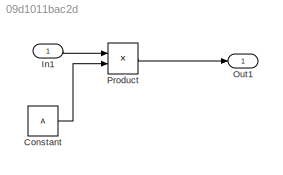
MODEL slx_09d1011bac2d
KIND model
WORKSPACE source: MATLAB code (in-file)
WORKSPACE x = evalin('base','x')
WORKSPACE code: if x == 2
WORKSPACE code: load test.mat
WORKSPACE code: elseif x == 3
WORKSPACE A = 3
WORKSPACE code: else
WORKSPACE A = 10
WORKSPACE code: end
BLOCK [Constant] Constant
  Value = A
BLOCK [Inport] In1
  IconDisplay = Port number
BLOCK [Outport] Out1
  IconDisplay = Port number
BLOCK [Product] Product
  InputSameDT = off
  OutDataTypeStr = Inherit: Inherit via internal rule
  Ports = [2, 1]
  RndMeth = Floor
  SaturateOnIntegerOverflow = off
LINE Constant:1 -> Product:2
LINE In1:1 -> Product:1
LINE Product:1 -> Out1:1
